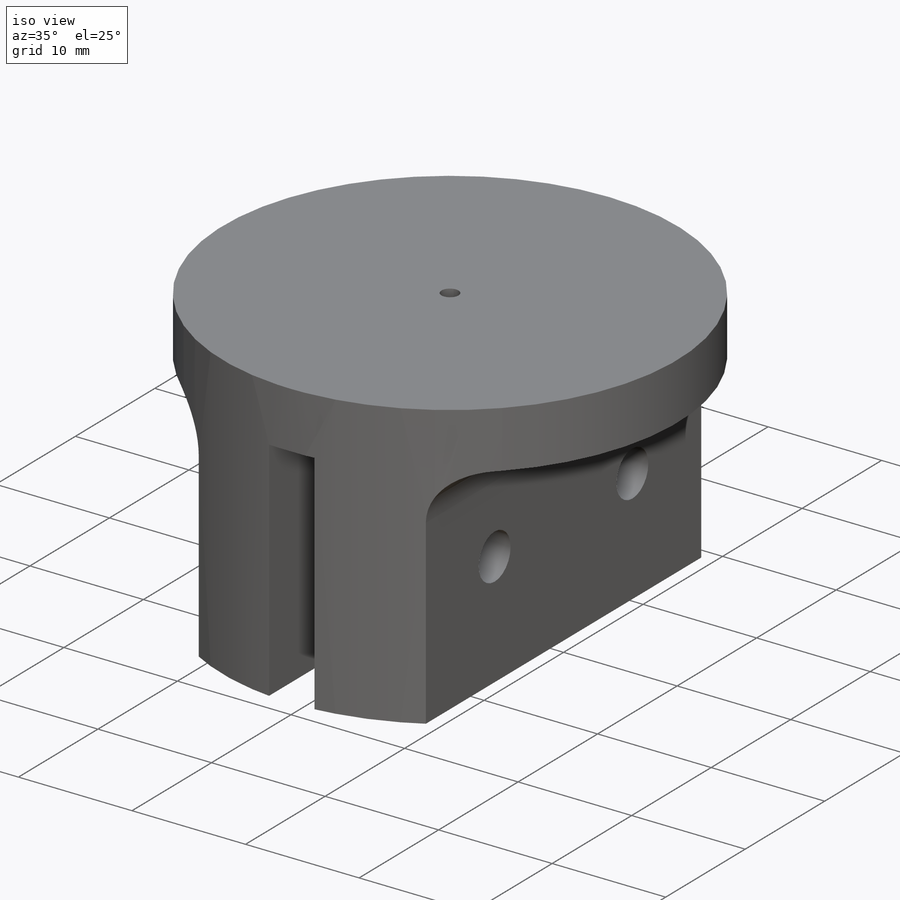
[diagram: iso view]
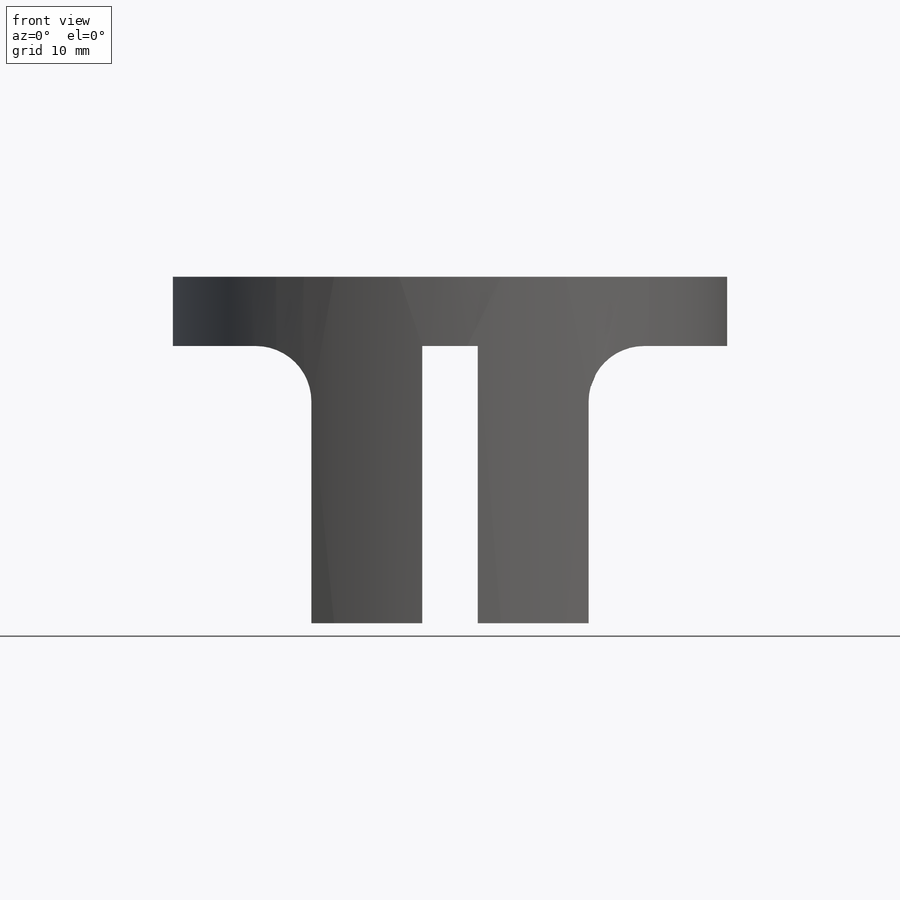
[diagram: front view]
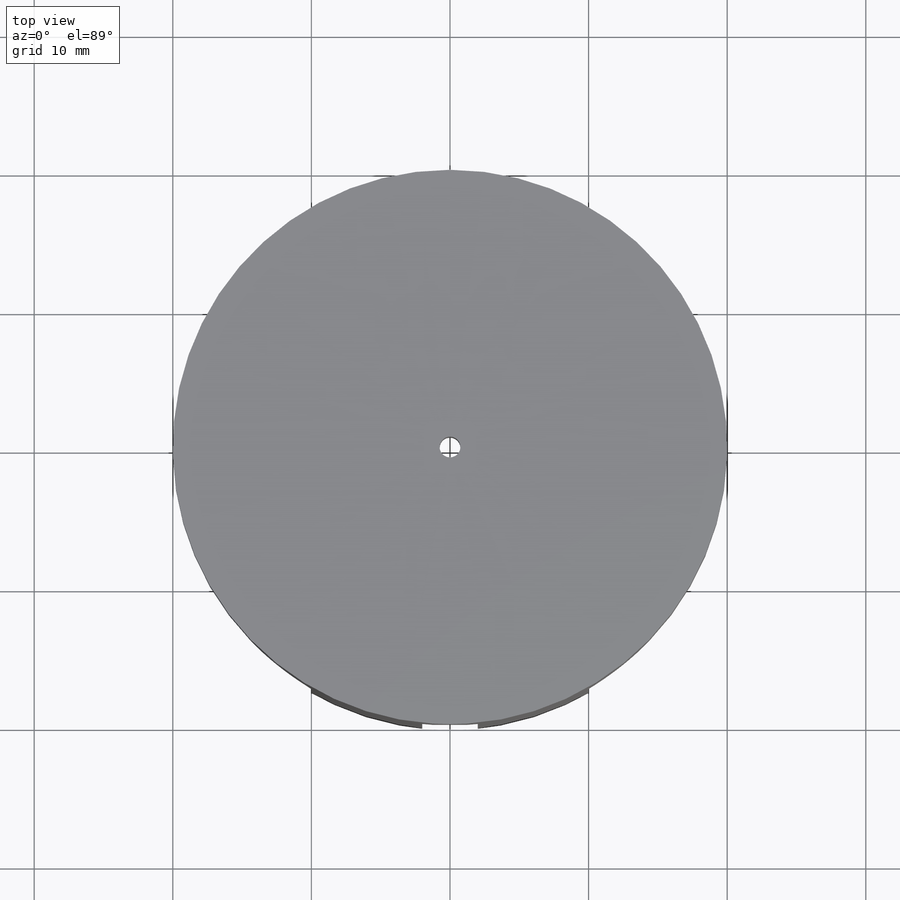
[diagram: top view]
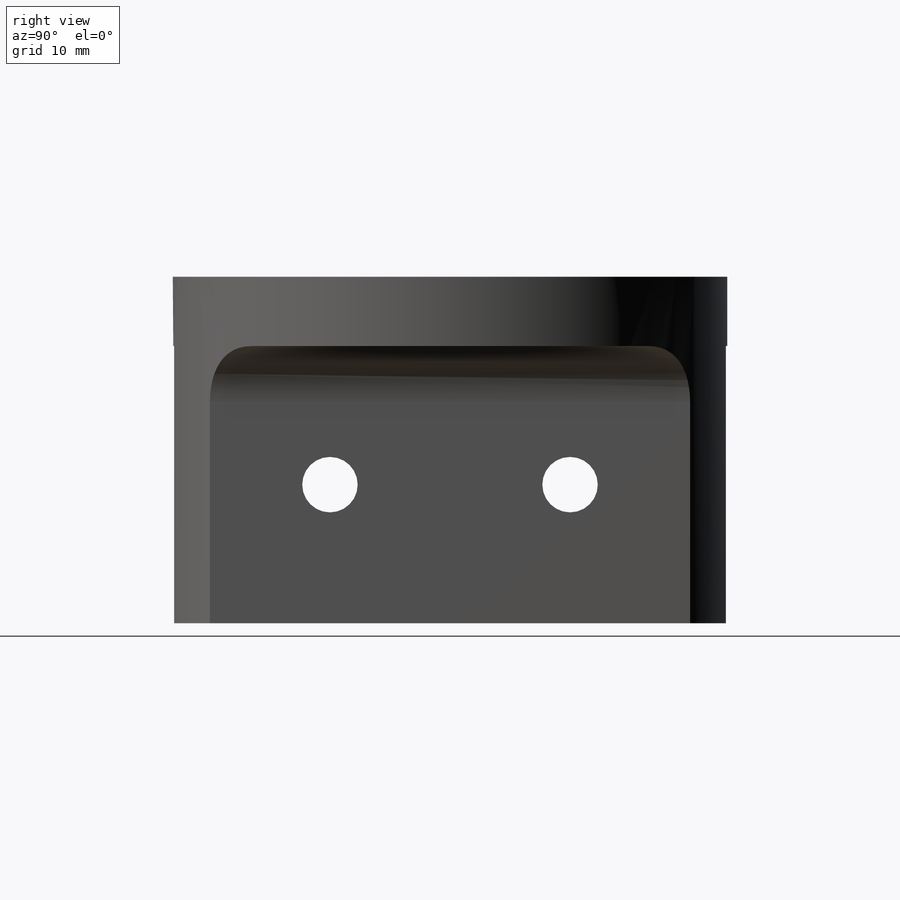
[diagram: right view]
SOLIDWORKS PART (.sldprt)
format: sldprt  version: not decoded by parser v0  size: 169,472 bytes
history: native  units: mm
features: plane x3, sketch x3, cut_extrude x2, material x1, extrude x1, fillet x1 (+10 scaffold rows collapsed)
feature tree (21):
  scaffold x10  (default folders/planes/origin — collapsed)
  material  "Material <não especificado>"
  plane  "Plano frontal"
  plane  "Plano superior"
  plane  "Plano direito"
  sketch  "Esboço1"  dims[D1=40.0mm D2=1.5mm]
  extrude  "Ressalto-extrusão1"  Depth=25mm
  sketch  "Esboço2"  dims[D1=2.0mm D2=2.0mm D3=10.0mm D4=10.0mm]
  cut_extrude  "Corte-extrusão1"  Depth=20mm
  sketch  "Esboço3"  dims[D1=4.0mm D2=4.0mm]
  cut_extrude  "Corte-extrusão2"  Depth=20mm
  fillet  "Filete1"  Radius=4mm
decode coverage: 7 of 7 modeling features carry decoded parameters
note: suppression state not decoded; provenance and decode notes live in map.json
